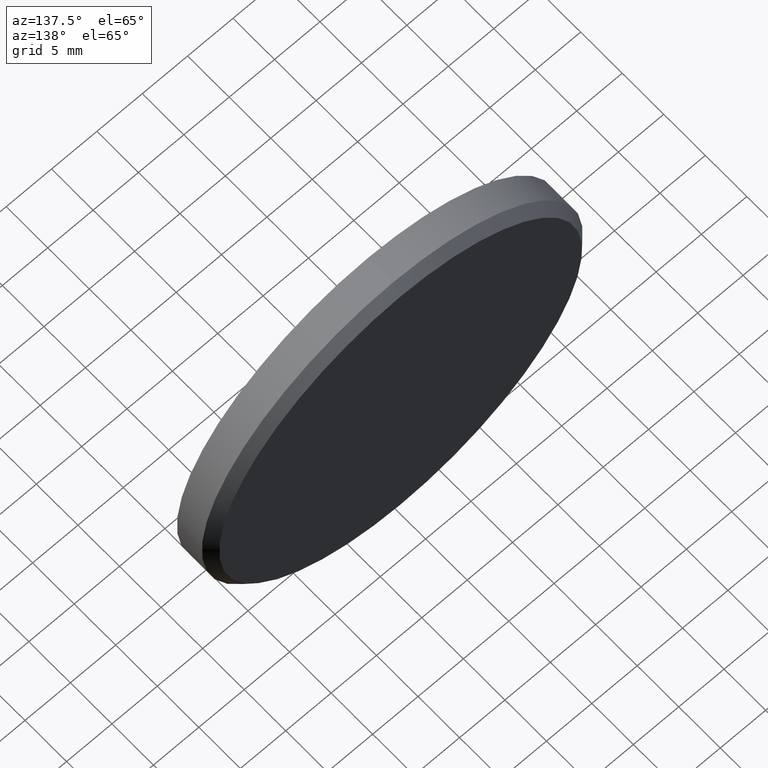
[diagram: clean part render]
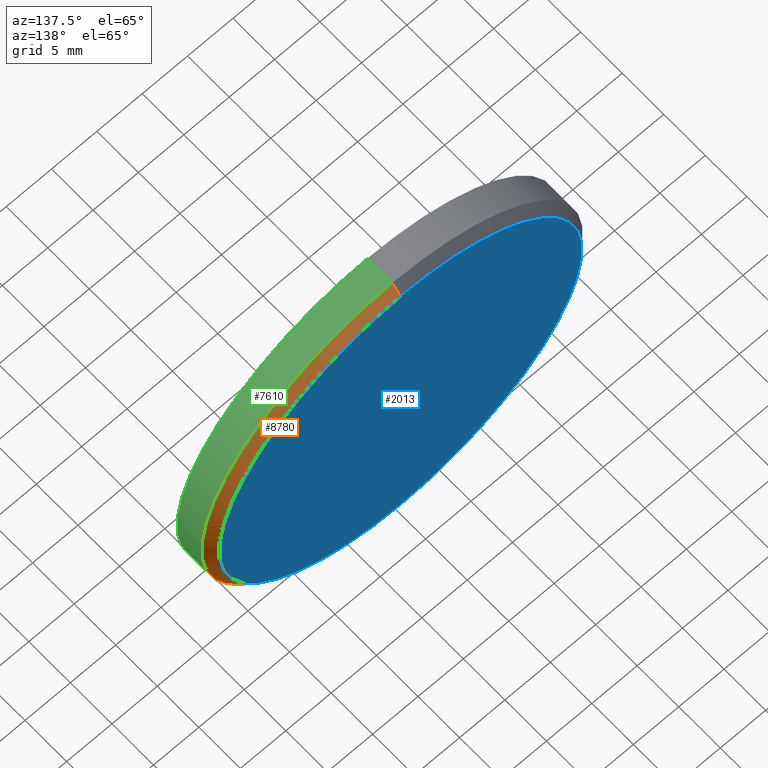
[diagram: same view with three faces highlighted in distinct colors, each labeled with its STEP entity id]
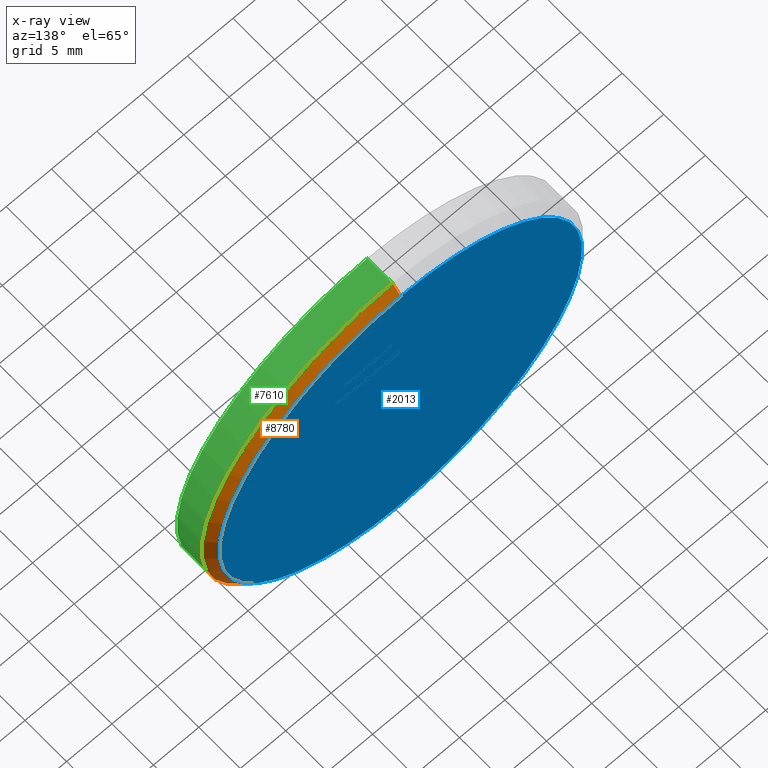
[diagram: x-ray of the same camera — body ghosted, the three highlighted faces saturated]
A machine part, auxiliary view with three faces highlighted in distinct colors.
The next image is the same camera in x-ray (body ghosted, the three faces saturated) — at least one of them is partly hidden behind the body in this view.
Their STEP definitions:

[orange] entity #8780 — the highlighted conical surface has half-angle 45 deg.
#568 = EDGE_CURVE ( 'NONE', #12596, #1781, #3608, .T. ) ;
#804 = LINE ( 'NONE', #12561, #9317 ) ;
#940 = VERTEX_POINT ( 'NONE', #5940 ) ;
#1412 = VERTEX_POINT ( 'NONE', #3821 ) ;
#1711 = DIRECTION ( 'NONE',  ( 0.000000000000000000, 0.000000000000000000, 1.000000000000000000 ) ) ;
#1781 = VERTEX_POINT ( 'NONE', #2270 ) ;
#2270 = CARTESIAN_POINT ( 'NONE',  ( 0.000000000000000000, 1.000000000000002665, -21.00000000000000000 ) ) ;
#2549 = EDGE_LOOP ( 'NONE', ( #3970, #5463, #9939, #13425 ) ) ;
#2576 = VECTOR ( 'NONE', #6328, 1000.000000000000114 ) ;
#3043 = EDGE_CURVE ( 'NONE', #940, #1412, #804, .T. ) ;
#3608 = LINE ( 'NONE', #7289, #2576 ) ;
#3821 = CARTESIAN_POINT ( 'NONE',  ( 2.571758278209441661E-15, 1.000000000000002665, 21.00000000000000000 ) ) ;
#3897 = AXIS2_PLACEMENT_3D ( 'NONE', #6543, #11147, #5473 ) ;
#3970 = ORIENTED_EDGE ( 'NONE', *, *, #8978, .F. ) ;
#4135 = AXIS2_PLACEMENT_3D ( 'NONE', #10652, #6241, #1711 ) ;
#4878 = EDGE_CURVE ( 'NONE', #1781, #1412, #12571, .T. ) ;
#5463 = ORIENTED_EDGE ( 'NONE', *, *, #3043, .T. ) ;
#5473 = DIRECTION ( 'NONE',  ( 0.000000000000000000, 0.000000000000000000, 1.000000000000000000 ) ) ;
#5940 = CARTESIAN_POINT ( 'NONE',  ( 2.510525938252074481E-15, 2.000000000000000000, 20.00000000000001066 ) ) ;
#6241 = DIRECTION ( 'NONE',  ( 0.000000000000000000, -1.000000000000000000, 0.000000000000000000 ) ) ;
#6328 = DIRECTION ( 'NONE',  ( 0.000000000000000000, -0.7071067811865500152, -0.7071067811865451302 ) ) ;
#6543 = CARTESIAN_POINT ( 'NONE',  ( 0.000000000000000000, 2.000000000000000000, 0.000000000000000000 ) ) ;
#6712 = AXIS2_PLACEMENT_3D ( 'NONE', #13585, #13828, #9958 ) ;
#7289 = CARTESIAN_POINT ( 'NONE',  ( 0.000000000000000000, 2.000000000000000000, -20.00000000000001066 ) ) ;
#8041 = FACE_OUTER_BOUND ( 'NONE', #2549, .T. ) ;
#8329 = CARTESIAN_POINT ( 'NONE',  ( 0.000000000000000000, 2.000000000000000000, -20.00000000000001066 ) ) ;
#8649 = CONICAL_SURFACE ( 'NONE', #6712, 20.00000000000001066, 0.7853981633974447263 ) ;
#8780 = ADVANCED_FACE ( 'NONE', ( #8041 ), #8649, .T. ) ;
#8978 = EDGE_CURVE ( 'NONE', #940, #12596, #11846, .T. ) ;
#9317 = VECTOR ( 'NONE', #10645, 1000.000000000000114 ) ;
#9939 = ORIENTED_EDGE ( 'NONE', *, *, #4878, .F. ) ;
#9958 = DIRECTION ( 'NONE',  ( 0.000000000000000000, 0.000000000000000000, -1.000000000000000000 ) ) ;
#10645 = DIRECTION ( 'NONE',  ( 8.659560562354904508E-17, -0.7071067811865500152, 0.7071067811865451302 ) ) ;
#10652 = CARTESIAN_POINT ( 'NONE',  ( 0.000000000000000000, 1.000000000000002665, 0.000000000000000000 ) ) ;
#11147 = DIRECTION ( 'NONE',  ( 0.000000000000000000, 1.000000000000000000, 0.000000000000000000 ) ) ;
#11846 = CIRCLE ( 'NONE', #3897, 20.00000000000001066 ) ;
#12561 = CARTESIAN_POINT ( 'NONE',  ( 2.449293598294708091E-15, 2.000000000000000000, 20.00000000000001066 ) ) ;
#12571 = CIRCLE ( 'NONE', #4135, 21.00000000000000000 ) ;
#12596 = VERTEX_POINT ( 'NONE', #8329 ) ;
#13425 = ORIENTED_EDGE ( 'NONE', *, *, #568, .F. ) ;
#13585 = CARTESIAN_POINT ( 'NONE',  ( 0.000000000000000000, 2.000000000000000000, 0.000000000000000000 ) ) ;
#13828 = DIRECTION ( 'NONE',  ( 0.000000000000000000, -1.000000000000000000, 0.000000000000000000 ) ) ;

[blue] entity #2013 — the highlighted planar face has unit normal (0, 1, 0).
#940 = VERTEX_POINT ( 'NONE', #5940 ) ;
#2013 = ADVANCED_FACE ( 'NONE', ( #4838 ), #8163, .T. ) ;
#3263 = CARTESIAN_POINT ( 'NONE',  ( 0.000000000000000000, 2.000000000000000000, 0.000000000000000000 ) ) ;
#3704 = EDGE_LOOP ( 'NONE', ( #10070, #12778 ) ) ;
#3897 = AXIS2_PLACEMENT_3D ( 'NONE', #6543, #11147, #5473 ) ;
#4838 = FACE_OUTER_BOUND ( 'NONE', #3704, .T. ) ;
#5473 = DIRECTION ( 'NONE',  ( 0.000000000000000000, 0.000000000000000000, 1.000000000000000000 ) ) ;
#5940 = CARTESIAN_POINT ( 'NONE',  ( 2.510525938252074481E-15, 2.000000000000000000, 20.00000000000001066 ) ) ;
#6543 = CARTESIAN_POINT ( 'NONE',  ( 0.000000000000000000, 2.000000000000000000, 0.000000000000000000 ) ) ;
#8163 = PLANE ( 'NONE',  #11482 ) ;
#8260 = CIRCLE ( 'NONE', #13851, 20.00000000000001066 ) ;
#8329 = CARTESIAN_POINT ( 'NONE',  ( 0.000000000000000000, 2.000000000000000000, -20.00000000000001066 ) ) ;
#8801 = DIRECTION ( 'NONE',  ( 0.000000000000000000, 1.000000000000000000, 0.000000000000000000 ) ) ;
#8978 = EDGE_CURVE ( 'NONE', #940, #12596, #11846, .T. ) ;
#9391 = CARTESIAN_POINT ( 'NONE',  ( 0.000000000000000000, 2.000000000000000000, 0.000000000000000000 ) ) ;
#9438 = DIRECTION ( 'NONE',  ( 0.000000000000000000, -0.000000000000000000, 1.000000000000000000 ) ) ;
#10070 = ORIENTED_EDGE ( 'NONE', *, *, #11744, .T. ) ;
#11147 = DIRECTION ( 'NONE',  ( 0.000000000000000000, 1.000000000000000000, 0.000000000000000000 ) ) ;
#11482 = AXIS2_PLACEMENT_3D ( 'NONE', #9391, #11587, #9438 ) ;
#11587 = DIRECTION ( 'NONE',  ( 0.000000000000000000, 1.000000000000000000, 0.000000000000000000 ) ) ;
#11744 = EDGE_CURVE ( 'NONE', #12596, #940, #8260, .T. ) ;
#11846 = CIRCLE ( 'NONE', #3897, 20.00000000000001066 ) ;
#12596 = VERTEX_POINT ( 'NONE', #8329 ) ;
#12778 = ORIENTED_EDGE ( 'NONE', *, *, #8978, .T. ) ;
#13851 = AXIS2_PLACEMENT_3D ( 'NONE', #3263, #8801, #14185 ) ;
#14185 = DIRECTION ( 'NONE',  ( 0.000000000000000000, 0.000000000000000000, 1.000000000000000000 ) ) ;

[green] entity #7610 — the highlighted cylindrical surface (partial cylindrical patch) has radius 21 mm, axis along (-0, -1, -0).
#251 = VECTOR ( 'NONE', #519, 1000.000000000000000 ) ;
#519 = DIRECTION ( 'NONE',  ( -0.000000000000000000, -1.000000000000000000, -0.000000000000000000 ) ) ;
#1013 = ORIENTED_EDGE ( 'NONE', *, *, #13107, .F. ) ;
#1412 = VERTEX_POINT ( 'NONE', #3821 ) ;
#1711 = DIRECTION ( 'NONE',  ( 0.000000000000000000, 0.000000000000000000, 1.000000000000000000 ) ) ;
#1781 = VERTEX_POINT ( 'NONE', #2270 ) ;
#2173 = EDGE_CURVE ( 'NONE', #7501, #4907, #5337, .T. ) ;
#2270 = CARTESIAN_POINT ( 'NONE',  ( 0.000000000000000000, 1.000000000000002665, -21.00000000000000000 ) ) ;
#2294 = AXIS2_PLACEMENT_3D ( 'NONE', #5184, #7407, #14341 ) ;
#2917 = EDGE_CURVE ( 'NONE', #1412, #7501, #14354, .T. ) ;
#2978 = CYLINDRICAL_SURFACE ( 'NONE', #2294, 21.00000000000000000 ) ;
#3821 = CARTESIAN_POINT ( 'NONE',  ( 2.571758278209441661E-15, 1.000000000000002665, 21.00000000000000000 ) ) ;
#4103 = CARTESIAN_POINT ( 'NONE',  ( 2.571758278209441661E-15, -2.000000000000000000, 21.00000000000000000 ) ) ;
#4135 = AXIS2_PLACEMENT_3D ( 'NONE', #10652, #6241, #1711 ) ;
#4426 = DIRECTION ( 'NONE',  ( 0.000000000000000000, 0.000000000000000000, 1.000000000000000000 ) ) ;
#4805 = EDGE_LOOP ( 'NONE', ( #6071, #5729, #4927, #1013 ) ) ;
#4878 = EDGE_CURVE ( 'NONE', #1781, #1412, #12571, .T. ) ;
#4907 = VERTEX_POINT ( 'NONE', #9379 ) ;
#4927 = ORIENTED_EDGE ( 'NONE', *, *, #2173, .T. ) ;
#5184 = CARTESIAN_POINT ( 'NONE',  ( 0.000000000000000000, 2.000000000000000000, 0.000000000000000000 ) ) ;
#5337 = CIRCLE ( 'NONE', #10736, 21.00000000000000000 ) ;
#5729 = ORIENTED_EDGE ( 'NONE', *, *, #2917, .T. ) ;
#5767 = CARTESIAN_POINT ( 'NONE',  ( 2.571758278209441661E-15, 2.000000000000000000, 21.00000000000000000 ) ) ;
#6071 = ORIENTED_EDGE ( 'NONE', *, *, #4878, .T. ) ;
#6241 = DIRECTION ( 'NONE',  ( 0.000000000000000000, -1.000000000000000000, 0.000000000000000000 ) ) ;
#6807 = CARTESIAN_POINT ( 'NONE',  ( 0.000000000000000000, -2.000000000000000000, 0.000000000000000000 ) ) ;
#7406 = VECTOR ( 'NONE', #10032, 1000.000000000000000 ) ;
#7407 = DIRECTION ( 'NONE',  ( -0.000000000000000000, -1.000000000000000000, -0.000000000000000000 ) ) ;
#7501 = VERTEX_POINT ( 'NONE', #4103 ) ;
#7610 = ADVANCED_FACE ( 'NONE', ( #9593 ), #2978, .T. ) ;
#9379 = CARTESIAN_POINT ( 'NONE',  ( 0.000000000000000000, -2.000000000000000000, -21.00000000000000000 ) ) ;
#9593 = FACE_OUTER_BOUND ( 'NONE', #4805, .T. ) ;
#10032 = DIRECTION ( 'NONE',  ( -0.000000000000000000, -1.000000000000000000, -0.000000000000000000 ) ) ;
#10652 = CARTESIAN_POINT ( 'NONE',  ( 0.000000000000000000, 1.000000000000002665, 0.000000000000000000 ) ) ;
#10736 = AXIS2_PLACEMENT_3D ( 'NONE', #6807, #13341, #4426 ) ;
#12571 = CIRCLE ( 'NONE', #4135, 21.00000000000000000 ) ;
#12680 = CARTESIAN_POINT ( 'NONE',  ( 0.000000000000000000, 2.000000000000000000, -21.00000000000000000 ) ) ;
#13107 = EDGE_CURVE ( 'NONE', #1781, #4907, #13974, .T. ) ;
#13341 = DIRECTION ( 'NONE',  ( 0.000000000000000000, 1.000000000000000000, 0.000000000000000000 ) ) ;
#13974 = LINE ( 'NONE', #12680, #251 ) ;
#14341 = DIRECTION ( 'NONE',  ( 0.000000000000000000, 0.000000000000000000, -1.000000000000000000 ) ) ;
#14354 = LINE ( 'NONE', #5767, #7406 ) ;